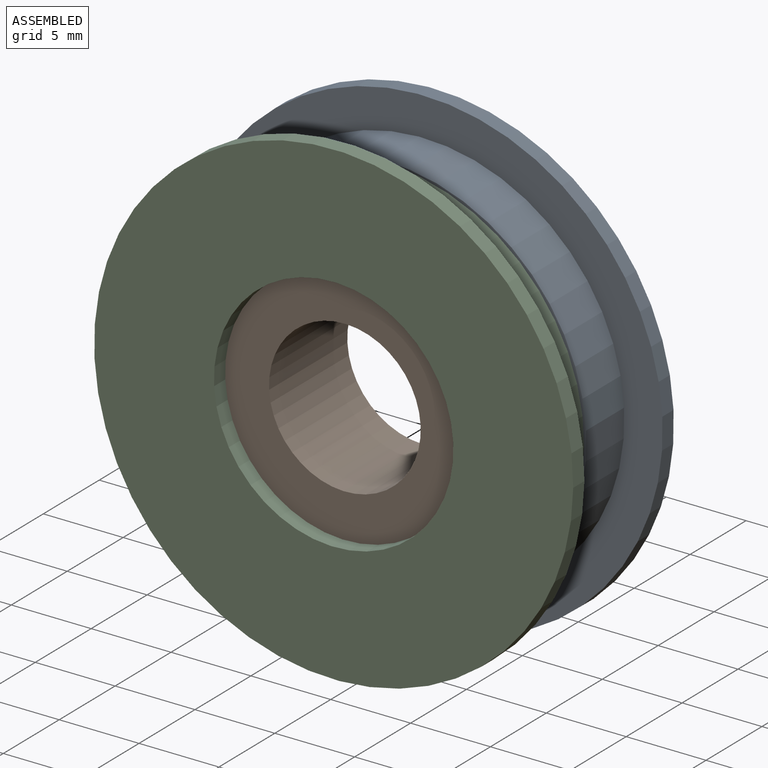
[diagram: assembled view]
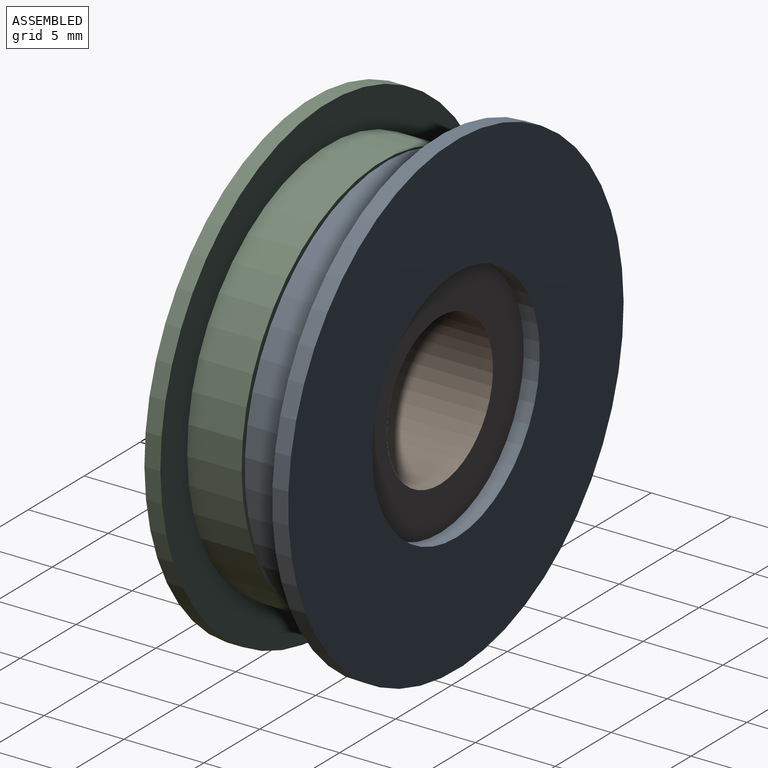
[diagram: assembled view, second angle]
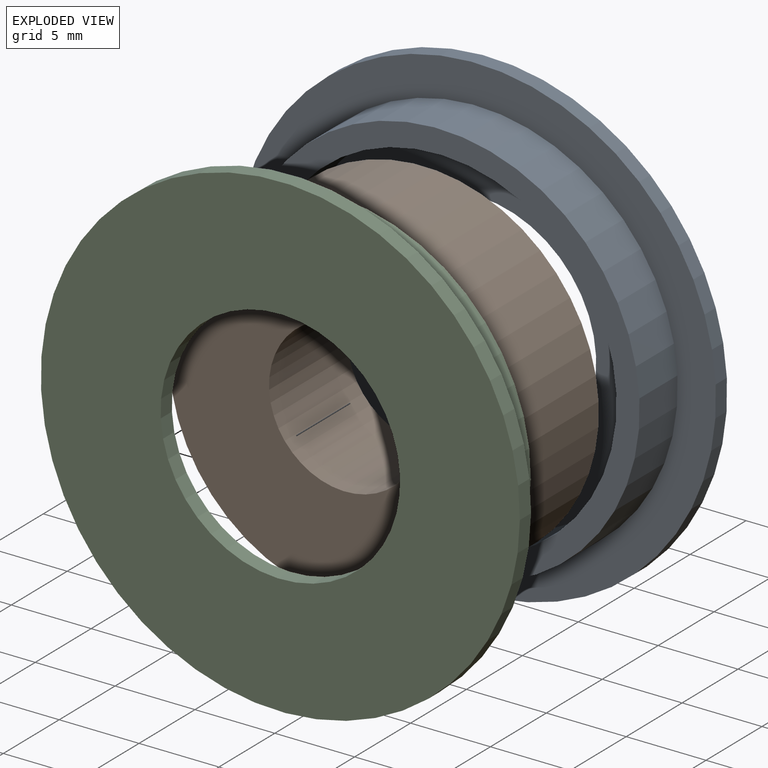
[diagram: exploded view]
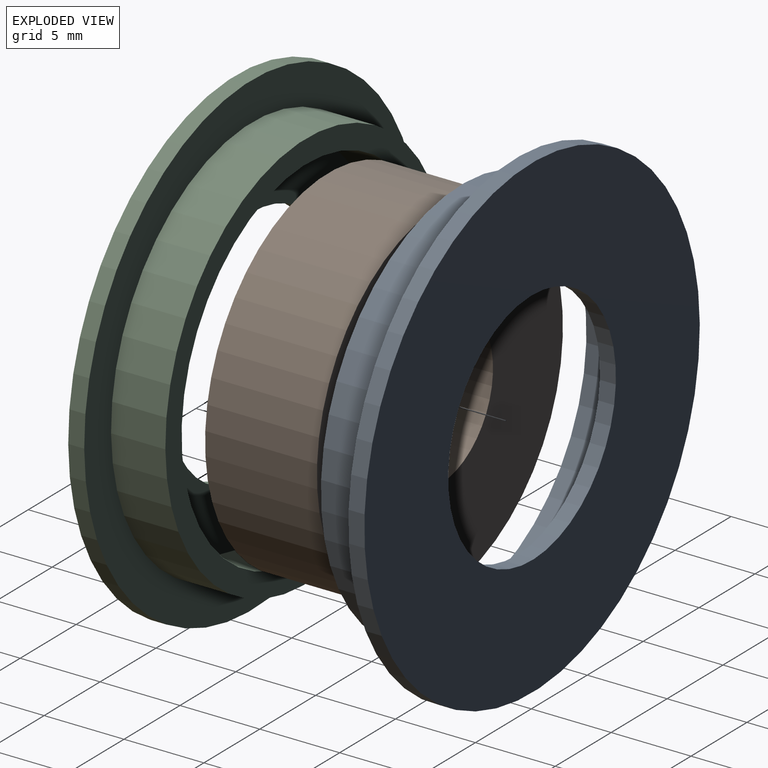
[diagram: exploded view, second angle]
ASSEMBLY  parts=3 mates=2
PART A: 8 faces, bbox 30x4.4x30 mm
  f0: cylinder r=7.5mm len=15mm, axis (0,1,0), area 47.1mm2, adj f5,f7
  f1: cylinder r=11.15mm len=22.3mm, axis (0,1,0), area 238.2mm2, adj f6,f7
  f2: cylinder r=12.6mm len=25.2mm, axis (0,1,0), area 269.2mm2, adj f4,f6
  f3: cylinder r=15mm len=30mm, axis (0,1,0), area 94.2mm2, adj f4,f5
  f4: plane 30x30mm, normal (0,-1,0), area 208.1mm2, adj f2,f3
  f5: plane 30x30mm, normal (0,1,0), area 530.1mm2, adj f0,f3
  f6: plane 25.2x25.2mm, normal (0,-1,0), area 108.2mm2, adj f1,f2
  f7: plane 22.3x22.3mm, normal (0,-1,0), area 213.9mm2, adj f0,f1
PART B: 4 faces, bbox 22x7x22 mm
  f0: cylinder r=4.75mm len=9.5mm, axis (0,1,0), area 208.9mm2, adj f2,f3
  f1: cylinder r=11mm len=22mm, axis (0,1,0), area 483.8mm2, adj f2,f3
  f2: plane 22x22mm, normal (0,-1,0), area 309.3mm2, adj f0,f1
  f3: plane 22x22mm, normal (0,1,0), area 309.3mm2, adj f0,f1
PART C: same geometry as A
PLACE A rot(axis=(0,-1,0),3.1deg) t=(-5.48,-55.05,27.54)mm
PLACE B rot(axis=(0,-1,0),3.1deg) t=(-5.48,-56.05,27.54)mm
PLACE C rot(axis=(0.03,0,-1),180deg) t=(-5.48,-64.05,27.54)mm
MATE fastened B.f0 <-> A.f0  axis (0,1,0) through (-5.48,-56.05,27.54)mm
MATE fastened B.f0 <-> C.f0  axis (0,-1,0) through (-5.48,-63.05,27.54)mm
